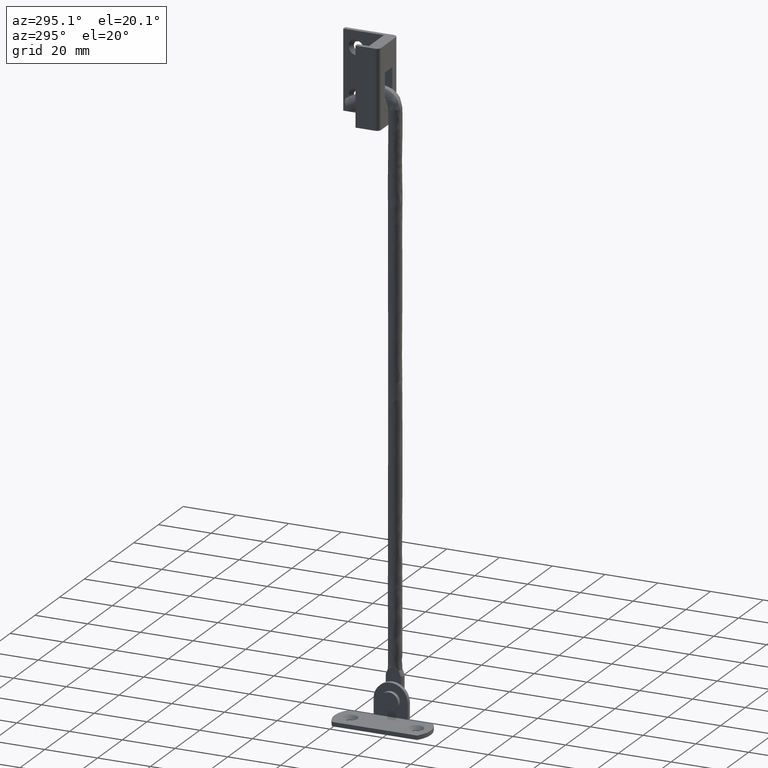
[diagram: clean part render]
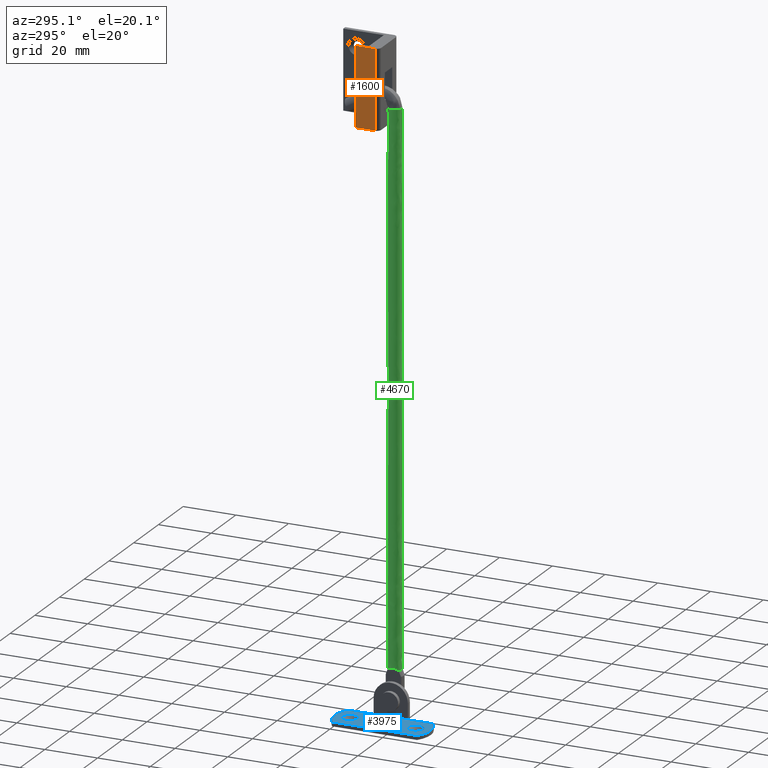
[diagram: same view with three faces highlighted in distinct colors, each labeled with its STEP entity id]
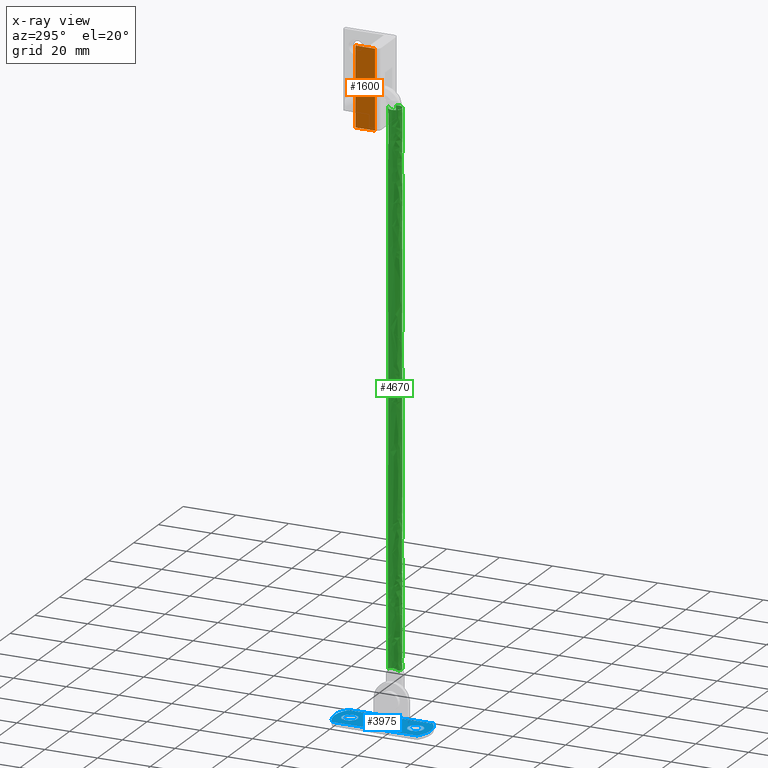
[diagram: x-ray of the same camera — body ghosted, the three highlighted faces saturated]
A machine part, auxiliary view with three faces highlighted in distinct colors.
The next image is the same camera in x-ray (body ghosted, the three faces saturated) — at least one of them is partly hidden behind the body in this view.
Their STEP definitions:

[orange] entity #1600 — the highlighted face is a freeform B-spline surface patch.
#1299=CARTESIAN_POINT('',(2.499999999999885,4.099999999999885,216.662185999999990));
#1300=VERTEX_POINT('',#1299);
#1323=CARTESIAN_POINT('',(2.499999999999885,4.099999999999885,246.662185999999990));
#1324=VERTEX_POINT('',#1323);
#1338=CARTESIAN_POINT('',(2.499999999999885,4.099999999999885,246.662185999999990));
#1339=CARTESIAN_POINT('',(2.499999999999885,4.099999999999885,216.662185999999990));
#1340=QUASI_UNIFORM_CURVE('',1,(#1338,#1339),.UNSPECIFIED.,.F.,.U.);
#1341=EDGE_CURVE('',#1324,#1300,#1340,.T.);
#1447=CARTESIAN_POINT('',(2.499999999999890,11.500000000000000,246.662185999999990));
#1448=VERTEX_POINT('',#1447);
#1454=CARTESIAN_POINT('',(2.499999999999885,4.099999999999885,246.662185999999990));
#1455=CARTESIAN_POINT('',(2.499999999999890,11.500000000000000,246.662185999999990));
#1456=QUASI_UNIFORM_CURVE('',1,(#1454,#1455),.UNSPECIFIED.,.F.,.U.);
#1457=EDGE_CURVE('',#1324,#1448,#1456,.T.);
#1480=CARTESIAN_POINT('',(2.499999999999890,11.500000000000000,216.662185999999990));
#1481=VERTEX_POINT('',#1480);
#1482=CARTESIAN_POINT('',(2.499999999999885,4.099999999999885,216.662185999999990));
#1483=CARTESIAN_POINT('',(2.499999999999890,11.500000000000000,216.662185999999990));
#1484=QUASI_UNIFORM_CURVE('',1,(#1482,#1483),.UNSPECIFIED.,.F.,.U.);
#1485=EDGE_CURVE('',#1300,#1481,#1484,.T.);
#1581=CARTESIAN_POINT('',(2.499999999999890,11.500000000000000,216.662185999999990));
#1582=CARTESIAN_POINT('',(2.499999999999890,11.500000000000000,246.662185999999990));
#1583=QUASI_UNIFORM_CURVE('',1,(#1581,#1582),.UNSPECIFIED.,.F.,.U.);
#1584=EDGE_CURVE('',#1481,#1448,#1583,.T.);
#1589=CARTESIAN_POINT('',(2.499999999999885,3.730369875410705,248.160685660235710));
#1590=CARTESIAN_POINT('',(2.499999999999885,11.869630190750341,248.160685660235710));
#1591=CARTESIAN_POINT('',(2.499999999999885,3.730369875410705,215.163685266880800));
#1592=CARTESIAN_POINT('',(2.499999999999885,11.869630190750341,215.163685266880800));
#1593=B_SPLINE_SURFACE_WITH_KNOTS('',1,1,((#1589,#1591),(#1590,#1592)),.UNSPECIFIED.,.F.,.F.,.U.,(2,2),(2,2),(0.0,8.139260315339632),(0.0,32.997000393354938),.UNSPECIFIED.);
#1594=ORIENTED_EDGE('',*,*,#1457,.T.);
#1595=ORIENTED_EDGE('',*,*,#1584,.F.);
#1596=ORIENTED_EDGE('',*,*,#1485,.F.);
#1597=ORIENTED_EDGE('',*,*,#1341,.F.);
#1598=EDGE_LOOP('',(#1594,#1595,#1596,#1597));
#1599=FACE_OUTER_BOUND('',#1598,.T.);
#1600=ADVANCED_FACE('',(#1599),#1593,.T.);

[blue] entity #3975 — the highlighted face is a freeform B-spline surface patch.
#2711=CARTESIAN_POINT('',(-0.342304578181758,15.480407913583580,1.599991625933538));
#2712=VERTEX_POINT('',#2711);
#2718=CARTESIAN_POINT('',(-3.0,12.500000000000000,1.599990999999905));
#2719=VERTEX_POINT('',#2718);
#2720=CARTESIAN_POINT('',(-0.342304578181758,15.480407913583573,1.599991625933538));
#2721=CARTESIAN_POINT('',(-3.000000000000000,15.175166747113407,1.599990999999906));
#2722=CARTESIAN_POINT('',(-3.0,12.500000000000000,1.599990999999905));
#2730=(BOUNDED_CURVE()B_SPLINE_CURVE(2,(#2720,#2721,#2722),.UNSPECIFIED.,.F.,.U.)B_SPLINE_CURVE_WITH_KNOTS((3,3),(0.269767898545846,0.500000000000000),.UNSPECIFIED.)CURVE()GEOMETRIC_REPRESENTATION_ITEM()RATIONAL_B_SPLINE_CURVE((0.957343455032106,0.730266314923630,1.0))REPRESENTATION_ITEM(''));
#2731=EDGE_CURVE('',#2712,#2719,#2730,.T.);
#2733=CARTESIAN_POINT('',(-0.183146203317312,9.505595505907845,1.599991134338101));
#2734=VERTEX_POINT('',#2733);
#2735=CARTESIAN_POINT('',(-3.0,12.500000000000000,1.599990999999905));
#2736=CARTESIAN_POINT('',(-3.000000000000001,9.677882887996207,1.599990999999905));
#2737=CARTESIAN_POINT('',(-0.183146203317313,9.505595505907845,1.599991134338101));
#2745=(BOUNDED_CURVE()B_SPLINE_CURVE(2,(#2735,#2736,#2737),.UNSPECIFIED.,.F.,.U.)B_SPLINE_CURVE_WITH_KNOTS((3,3),(0.500000000000000,0.739332895801230),.UNSPECIFIED.)CURVE()GEOMETRIC_REPRESENTATION_ITEM()RATIONAL_B_SPLINE_CURVE((1.0,0.719604071123333,0.976071899278093))REPRESENTATION_ITEM(''));
#2746=EDGE_CURVE('',#2719,#2734,#2745,.T.);
#2841=CARTESIAN_POINT('',(3.0,12.500000000000000,1.599990999999905));
#2842=VERTEX_POINT('',#2841);
#2843=CARTESIAN_POINT('',(-0.183146203317313,9.505595505907845,1.599991134338101));
#2844=CARTESIAN_POINT('',(-0.091658868023850,9.500000000000002,1.599990999999905));
#2845=CARTESIAN_POINT('',(0.0,9.500000000000002,1.599990999999905));
#2846=CARTESIAN_POINT('',(3.0,9.500000000000002,1.599990999999905));
#2847=CARTESIAN_POINT('',(3.0,12.500000000000000,1.599990999999905));
#2855=(BOUNDED_CURVE()B_SPLINE_CURVE(2,(#2843,#2844,#2845,#2846,#2847),.UNSPECIFIED.,.F.,.U.)B_SPLINE_CURVE_WITH_KNOTS((3,2,3),(0.739332895801231,0.750000000000000,1.0),.UNSPECIFIED.)CURVE()GEOMETRIC_REPRESENTATION_ITEM()RATIONAL_B_SPLINE_CURVE((0.976071899278095,0.987502710063216,1.0,0.707106781186548,1.0))REPRESENTATION_ITEM(''));
#2856=EDGE_CURVE('',#2734,#2842,#2855,.T.);
#2858=CARTESIAN_POINT('',(3.0,12.500000000000000,1.599990999999905));
#2859=CARTESIAN_POINT('',(3.0,15.500000000000004,1.599990999999905));
#2860=CARTESIAN_POINT('',(0.0,15.500000000000000,1.599990999999905));
#2861=CARTESIAN_POINT('',(-0.171712973747502,15.500000000000002,1.599990999999905));
#2862=CARTESIAN_POINT('',(-0.342304578181758,15.480407913583573,1.599991625933538));
#2870=(BOUNDED_CURVE()B_SPLINE_CURVE(2,(#2858,#2859,#2860,#2861,#2862),.UNSPECIFIED.,.F.,.U.)B_SPLINE_CURVE_WITH_KNOTS((3,2,3),(0.0,0.250000000000000,0.269767898545846),.UNSPECIFIED.)CURVE()GEOMETRIC_REPRESENTATION_ITEM()RATIONAL_B_SPLINE_CURVE((1.0,0.707106781186548,1.0,0.976840466262918,0.957343455032106))REPRESENTATION_ITEM(''));
#2871=EDGE_CURVE('',#2842,#2712,#2870,.T.);
#3039=CARTESIAN_POINT('',(-0.342304578181757,-9.519592086416427,1.599991625933537));
#3040=VERTEX_POINT('',#3039);
#3046=CARTESIAN_POINT('',(-3.0,-12.500000000000000,1.599990999999905));
#3047=VERTEX_POINT('',#3046);
#3048=CARTESIAN_POINT('',(-0.342304578181757,-9.519592086416427,1.599991625933537));
#3049=CARTESIAN_POINT('',(-3.000000000000000,-9.824833252886595,1.599990999999906));
#3050=CARTESIAN_POINT('',(-3.0,-12.500000000000000,1.599990999999905));
#3058=(BOUNDED_CURVE()B_SPLINE_CURVE(2,(#3048,#3049,#3050),.UNSPECIFIED.,.F.,.U.)B_SPLINE_CURVE_WITH_KNOTS((3,3),(0.269767898545846,0.500000000000000),.UNSPECIFIED.)CURVE()GEOMETRIC_REPRESENTATION_ITEM()RATIONAL_B_SPLINE_CURVE((0.957343455032106,0.730266314923630,1.0))REPRESENTATION_ITEM(''));
#3059=EDGE_CURVE('',#3040,#3047,#3058,.T.);
#3061=CARTESIAN_POINT('',(-0.183146203317312,-15.494404494092160,1.599991134338101));
#3062=VERTEX_POINT('',#3061);
#3063=CARTESIAN_POINT('',(-3.0,-12.500000000000000,1.599990999999905));
#3064=CARTESIAN_POINT('',(-3.000000000000001,-15.322117112003804,1.599990999999905));
#3065=CARTESIAN_POINT('',(-0.183146203317313,-15.494404494092155,1.599991134338101));
#3073=(BOUNDED_CURVE()B_SPLINE_CURVE(2,(#3063,#3064,#3065),.UNSPECIFIED.,.F.,.U.)B_SPLINE_CURVE_WITH_KNOTS((3,3),(0.500000000000000,0.739332895801230),.UNSPECIFIED.)CURVE()GEOMETRIC_REPRESENTATION_ITEM()RATIONAL_B_SPLINE_CURVE((1.0,0.719604071123333,0.976071899278093))REPRESENTATION_ITEM(''));
#3074=EDGE_CURVE('',#3047,#3062,#3073,.T.);
#3169=CARTESIAN_POINT('',(3.0,-12.500000000000000,1.599990999999905));
#3170=VERTEX_POINT('',#3169);
#3171=CARTESIAN_POINT('',(-0.183146203317313,-15.494404494092155,1.599991134338101));
#3172=CARTESIAN_POINT('',(-0.091658868023850,-15.500000000000004,1.599990999999905));
#3173=CARTESIAN_POINT('',(0.0,-15.500000000000000,1.599990999999905));
#3174=CARTESIAN_POINT('',(3.0,-15.500000000000004,1.599990999999905));
#3175=CARTESIAN_POINT('',(3.0,-12.500000000000000,1.599990999999905));
#3183=(BOUNDED_CURVE()B_SPLINE_CURVE(2,(#3171,#3172,#3173,#3174,#3175),.UNSPECIFIED.,.F.,.U.)B_SPLINE_CURVE_WITH_KNOTS((3,2,3),(0.739332895801231,0.750000000000000,1.0),.UNSPECIFIED.)CURVE()GEOMETRIC_REPRESENTATION_ITEM()RATIONAL_B_SPLINE_CURVE((0.976071899278095,0.987502710063216,1.0,0.707106781186548,1.0))REPRESENTATION_ITEM(''));
#3184=EDGE_CURVE('',#3062,#3170,#3183,.T.);
#3186=CARTESIAN_POINT('',(3.0,-12.500000000000000,1.599990999999905));
#3187=CARTESIAN_POINT('',(3.0,-9.500000000000002,1.599990999999905));
#3188=CARTESIAN_POINT('',(0.0,-9.500000000000002,1.599990999999905));
#3189=CARTESIAN_POINT('',(-0.171712973747502,-9.500000000000002,1.599990999999905));
#3190=CARTESIAN_POINT('',(-0.342304578181757,-9.519592086416427,1.599991625933537));
#3198=(BOUNDED_CURVE()B_SPLINE_CURVE(2,(#3186,#3187,#3188,#3189,#3190),.UNSPECIFIED.,.F.,.U.)B_SPLINE_CURVE_WITH_KNOTS((3,2,3),(0.0,0.250000000000000,0.269767898545846),.UNSPECIFIED.)CURVE()GEOMETRIC_REPRESENTATION_ITEM()RATIONAL_B_SPLINE_CURVE((1.0,0.707106781186548,1.0,0.976840466262918,0.957343455032106))REPRESENTATION_ITEM(''));
#3199=EDGE_CURVE('',#3170,#3040,#3198,.T.);
#3584=CARTESIAN_POINT('',(6.499999999999890,6.500000000000000,1.599990999999905));
#3585=VERTEX_POINT('',#3584);
#3633=CARTESIAN_POINT('',(6.499999999999890,-6.499999999999890,1.599990999999855));
#3634=VERTEX_POINT('',#3633);
#3733=CARTESIAN_POINT('',(6.499999999999890,-16.124119674649499,1.599990999999855));
#3734=VERTEX_POINT('',#3733);
#3740=CARTESIAN_POINT('',(-6.500000058880930,-16.124119631521101,1.599990999999855));
#3741=VERTEX_POINT('',#3740);
#3742=CARTESIAN_POINT('',(-6.500000058880920,-16.124119631521090,1.599990999999855));
#3743=CARTESIAN_POINT('',(-0.000000045235587,-20.885155342753514,1.599990999999855));
#3744=CARTESIAN_POINT('',(6.499999999999889,-16.124119674649510,1.599990999999855));
#3752=(BOUNDED_CURVE()B_SPLINE_CURVE(2,(#3742,#3743,#3744),.UNSPECIFIED.,.F.,.U.)CURVE()GEOMETRIC_REPRESENTATION_ITEM()QUASI_UNIFORM_CURVE()RATIONAL_B_SPLINE_CURVE((1.0,0.806738150280482,1.0))REPRESENTATION_ITEM(''));
#3753=EDGE_CURVE('',#3741,#3734,#3752,.T.);
#3775=CARTESIAN_POINT('',(6.500000058880950,16.124119631521101,1.599990999999855));
#3776=VERTEX_POINT('',#3775);
#3782=CARTESIAN_POINT('',(6.500000058880950,16.124119631521101,1.599990999999855));
#3783=CARTESIAN_POINT('',(6.499999999999890,6.500000000000000,1.599990999999905));
#3784=QUASI_UNIFORM_CURVE('',1,(#3782,#3783),.UNSPECIFIED.,.F.,.U.);
#3785=EDGE_CURVE('',#3776,#3585,#3784,.T.);
#3820=CARTESIAN_POINT('',(-6.500000058880910,16.124119631521101,1.599990999999855));
#3821=VERTEX_POINT('',#3820);
#3827=CARTESIAN_POINT('',(6.500000058880937,16.124119631521079,1.599990999999855));
#3828=CARTESIAN_POINT('',(2.081668E-014,20.885155375887098,1.599990999999856));
#3829=CARTESIAN_POINT('',(-6.500000058880909,16.124119631521101,1.599990999999855));
#3837=(BOUNDED_CURVE()B_SPLINE_CURVE(2,(#3827,#3828,#3829),.UNSPECIFIED.,.F.,.U.)CURVE()GEOMETRIC_REPRESENTATION_ITEM()QUASI_UNIFORM_CURVE()RATIONAL_B_SPLINE_CURVE((1.0,0.806738148320099,1.0))REPRESENTATION_ITEM(''));
#3838=EDGE_CURVE('',#3776,#3821,#3837,.T.);
#3855=CARTESIAN_POINT('',(-6.500000058880930,-16.124119631521101,1.599990999999855));
#3856=CARTESIAN_POINT('',(-6.500000058880910,16.124119631521101,1.599990999999855));
#3857=QUASI_UNIFORM_CURVE('',1,(#3855,#3856),.UNSPECIFIED.,.F.,.U.);
#3858=EDGE_CURVE('',#3741,#3821,#3857,.T.);
#3869=CARTESIAN_POINT('',(6.499999999999890,-6.499999999999890,1.599990999999855));
#3870=CARTESIAN_POINT('',(6.499999999999890,-16.124119674649499,1.599990999999855));
#3871=QUASI_UNIFORM_CURVE('',1,(#3869,#3870),.UNSPECIFIED.,.F.,.U.);
#3872=EDGE_CURVE('',#3634,#3734,#3871,.T.);
#3907=CARTESIAN_POINT('',(6.499999999999890,6.500000000000000,1.599990999999905));
#3908=CARTESIAN_POINT('',(6.499999999999890,-6.499999999999890,1.599990999999855));
#3909=QUASI_UNIFORM_CURVE('',1,(#3907,#3908),.UNSPECIFIED.,.F.,.U.);
#3910=EDGE_CURVE('',#3585,#3634,#3909,.T.);
#3950=CARTESIAN_POINT('',(7.149350039566633,20.073174929255352,1.599990999999905));
#3951=CARTESIAN_POINT('',(-7.149350388253788,20.073174929255352,1.599990999999905));
#3952=CARTESIAN_POINT('',(7.149350039566634,-20.073175908261650,1.599990999999905));
#3953=CARTESIAN_POINT('',(-7.149350388253788,-20.073175908261650,1.599990999999905));
#3954=B_SPLINE_SURFACE_WITH_KNOTS('',1,1,((#3950,#3952),(#3951,#3953)),.UNSPECIFIED.,.F.,.F.,.U.,(2,2),(2,2),(0.0,14.298700427820419),(0.0,40.146350837517012),.UNSPECIFIED.);
#3955=ORIENTED_EDGE('',*,*,#3858,.F.);
#3956=ORIENTED_EDGE('',*,*,#3753,.T.);
#3957=ORIENTED_EDGE('',*,*,#3872,.F.);
#3958=ORIENTED_EDGE('',*,*,#3910,.F.);
#3959=ORIENTED_EDGE('',*,*,#3785,.F.);
#3960=ORIENTED_EDGE('',*,*,#3838,.T.);
#3961=EDGE_LOOP('',(#3955,#3956,#3957,#3958,#3959,#3960));
#3962=FACE_OUTER_BOUND('',#3961,.T.);
#3963=ORIENTED_EDGE('',*,*,#3074,.F.);
#3964=ORIENTED_EDGE('',*,*,#3059,.F.);
#3965=ORIENTED_EDGE('',*,*,#3199,.F.);
#3966=ORIENTED_EDGE('',*,*,#3184,.F.);
#3967=EDGE_LOOP('',(#3963,#3964,#3965,#3966));
#3968=FACE_BOUND('',#3967,.T.);
#3969=ORIENTED_EDGE('',*,*,#2746,.F.);
#3970=ORIENTED_EDGE('',*,*,#2731,.F.);
#3971=ORIENTED_EDGE('',*,*,#2871,.F.);
#3972=ORIENTED_EDGE('',*,*,#2856,.F.);
#3973=EDGE_LOOP('',(#3969,#3970,#3971,#3972));
#3974=FACE_BOUND('',#3973,.T.);
#3975=ADVANCED_FACE('',(#3962,#3968,#3974),#3954,.T.);

[green] entity #4670 — the highlighted face is a freeform B-spline surface patch.
#4429=CARTESIAN_POINT('',(10.040179391890209,2.499284411893782,223.233963019317090));
#4430=VERTEX_POINT('',#4429);
#4431=CARTESIAN_POINT('',(12.471391746893170,0.791491312418254,223.233963019317000));
#4432=VERTEX_POINT('',#4431);
#4448=CARTESIAN_POINT('',(12.471378615132220,0.791486928897166,18.971365482898062));
#4449=VERTEX_POINT('',#4448);
#4450=CARTESIAN_POINT('',(12.471378615132220,0.791486928897166,18.971365482898062));
#4451=CARTESIAN_POINT('',(12.471391746893170,0.791491312418254,223.233963019317000));
#4452=QUASI_UNIFORM_CURVE('',1,(#4450,#4451),.UNSPECIFIED.,.F.,.U.);
#4453=EDGE_CURVE('',#4449,#4432,#4452,.T.);
#4470=CARTESIAN_POINT('',(10.040179715357761,2.499250620640429,18.099990999999850));
#4471=VERTEX_POINT('',#4470);
#4487=CARTESIAN_POINT('',(10.040179715357761,2.499250620640429,18.099990999999850));
#4488=CARTESIAN_POINT('',(10.040179391890209,2.499284411893782,223.233963019317090));
#4489=QUASI_UNIFORM_CURVE('',1,(#4487,#4488),.UNSPECIFIED.,.F.,.U.);
#4490=EDGE_CURVE('',#4471,#4430,#4489,.T.);
#4495=CARTESIAN_POINT('',(10.040179393868639,2.499284411941147,12.971641699505231));
#4496=CARTESIAN_POINT('',(7.540894981927490,2.439472805809984,12.971641699505227));
#4497=CARTESIAN_POINT('',(7.600706588058653,-0.059811606131163,12.971641699505231));
#4498=CARTESIAN_POINT('',(7.660518194189816,-2.559096018072312,12.971641699505227));
#4499=CARTESIAN_POINT('',(10.159802606130960,-2.499284411941148,12.971641699505231));
#4500=CARTESIAN_POINT('',(12.659087018072110,-2.439472805809984,12.971641699505227));
#4501=CARTESIAN_POINT('',(12.599275411940949,0.059811606131163,12.971641699505231));
#4502=CARTESIAN_POINT('',(12.590290446386723,0.435256871758201,12.971641699505225));
#4503=CARTESIAN_POINT('',(12.471391747047381,0.791491311956200,12.971641699505231));
#4504=CARTESIAN_POINT('',(10.040179393868639,2.499284411941134,228.490521052789210));
#4505=CARTESIAN_POINT('',(7.540894981927490,2.439472805809972,228.490521052789260));
#4506=CARTESIAN_POINT('',(7.600706588058653,-0.059811606131176,228.490521052789210));
#4507=CARTESIAN_POINT('',(7.660518194189816,-2.559096018072324,228.490521052789260));
#4508=CARTESIAN_POINT('',(10.159802606130960,-2.499284411941161,228.490521052789210));
#4509=CARTESIAN_POINT('',(12.659087018072110,-2.439472805809999,228.490521052789260));
#4510=CARTESIAN_POINT('',(12.599275411940949,0.059811606131149,228.490521052789210));
#4511=CARTESIAN_POINT('',(12.590290446386723,0.435256871758188,228.490521052789230));
#4512=CARTESIAN_POINT('',(12.471391747047381,0.791491311956186,228.490521052789260));
#4520=(BOUNDED_SURFACE()B_SPLINE_SURFACE(2,1,((#4495,#4504),(#4496,#4505),(#4497,#4506),(#4498,#4507),(#4499,#4508),(#4500,#4509),(#4501,#4510),(#4502,#4511),(#4503,#4512)),.UNSPECIFIED.,.F.,.F.,.U.)B_SPLINE_SURFACE_WITH_KNOTS((3,2,2,2,3),(2,2),(0.0,4.142135623730950,8.284271247461900,12.426406871192849,13.254833995939039),(0.0,215.518879353284010),.UNSPECIFIED.)GEOMETRIC_REPRESENTATION_ITEM()RATIONAL_B_SPLINE_SURFACE(((1.0,1.0),(0.707106781186548,0.707106781186548),(1.0,1.0),(0.707106781186548,0.707106781186548),(1.0,1.0),(0.707106781186548,0.707106781186548),(1.0,1.0),(0.941421356237310,0.941421356237310),(0.906274169979695,0.906274169979695)))REPRESENTATION_ITEM('')SURFACE());
#4521=CARTESIAN_POINT('',(12.599990999999800,-1.145215E-014,223.233963019317000));
#4522=VERTEX_POINT('',#4521);
#4523=CARTESIAN_POINT('',(12.471391746893165,0.791491312418254,223.233963019317000));
#4524=CARTESIAN_POINT('',(12.599990999999799,0.406192876561288,223.233963019317060));
#4525=CARTESIAN_POINT('',(12.599990999999800,-1.145215E-014,223.233963019317000));
#4533=(BOUNDED_CURVE()B_SPLINE_CURVE(2,(#4523,#4524,#4525),.UNSPECIFIED.,.F.,.U.)B_SPLINE_CURVE_WITH_KNOTS((3,3),(0.946177893175175,1.0),.UNSPECIFIED.)CURVE()GEOMETRIC_REPRESENTATION_ITEM()RATIONAL_B_SPLINE_CURVE((0.901037637345175,0.936943479555022,1.0))REPRESENTATION_ITEM(''));
#4534=EDGE_CURVE('',#4432,#4522,#4533,.T.);
#4535=ORIENTED_EDGE('',*,*,#4534,.T.);
#4536=CARTESIAN_POINT('',(8.966518254292337,-2.228281744918818,223.233963019782290));
#4537=VERTEX_POINT('',#4536);
#4538=CARTESIAN_POINT('',(12.599990999999800,-1.145215E-014,223.233963019317000));
#4539=CARTESIAN_POINT('',(12.599990999999802,-2.500000000000012,223.233963019316920));
#4540=CARTESIAN_POINT('',(10.099990999999800,-2.500000000000012,223.233963019317000));
#4541=CARTESIAN_POINT('',(9.500686216931111,-2.500000000000012,223.233963019316970));
#4542=CARTESIAN_POINT('',(8.966518254292337,-2.228281744918819,223.233963019782350));
#4550=(BOUNDED_CURVE()B_SPLINE_CURVE(2,(#4538,#4539,#4540,#4541,#4542),.UNSPECIFIED.,.F.,.U.)B_SPLINE_CURVE_WITH_KNOTS((3,2,3),(0.0,0.250000000000000,0.327098879650989),.UNSPECIFIED.)CURVE()GEOMETRIC_REPRESENTATION_ITEM()RATIONAL_B_SPLINE_CURVE((1.0,0.707106781186548,1.0,0.909673043888444,0.875058944724767))REPRESENTATION_ITEM(''));
#4551=EDGE_CURVE('',#4522,#4537,#4550,.T.);
#4552=ORIENTED_EDGE('',*,*,#4551,.T.);
#4553=CARTESIAN_POINT('',(7.599990999999799,-1.145215E-014,223.233963019317000));
#4554=VERTEX_POINT('',#4553);
#4555=CARTESIAN_POINT('',(8.966518254292337,-2.228281744918819,223.233963019782350));
#4556=CARTESIAN_POINT('',(7.599990999999799,-1.533162555772754,223.233963019317060));
#4557=CARTESIAN_POINT('',(7.599990999999799,-1.145215E-014,223.233963019317000));
#4565=(BOUNDED_CURVE()B_SPLINE_CURVE(2,(#4555,#4556,#4557),.UNSPECIFIED.,.F.,.U.)B_SPLINE_CURVE_WITH_KNOTS((3,3),(0.327098879650989,0.500000000000000),.UNSPECIFIED.)CURVE()GEOMETRIC_REPRESENTATION_ITEM()RATIONAL_B_SPLINE_CURVE((0.875058944724767,0.797433737298104,1.0))REPRESENTATION_ITEM(''));
#4566=EDGE_CURVE('',#4537,#4554,#4565,.T.);
#4567=ORIENTED_EDGE('',*,*,#4566,.T.);
#4568=CARTESIAN_POINT('',(7.940182457033420,1.259058004116333,223.233963019473890));
#4569=VERTEX_POINT('',#4568);
#4570=CARTESIAN_POINT('',(7.599990999999799,-1.145215E-014,223.233963019317000));
#4571=CARTESIAN_POINT('',(7.599990999999798,0.675488055216325,223.233963019317030));
#4572=CARTESIAN_POINT('',(7.940182457033421,1.259058004116333,223.233963019473890));
#4580=(BOUNDED_CURVE()B_SPLINE_CURVE(2,(#4570,#4571,#4572),.UNSPECIFIED.,.F.,.U.)B_SPLINE_CURVE_WITH_KNOTS((3,3),(0.500000000000000,0.585913162432334),.UNSPECIFIED.)CURVE()GEOMETRIC_REPRESENTATION_ITEM()RATIONAL_B_SPLINE_CURVE((1.0,0.899346469267003,0.867872643616021))REPRESENTATION_ITEM(''));
#4581=EDGE_CURVE('',#4554,#4569,#4580,.T.);
#4582=ORIENTED_EDGE('',*,*,#4581,.T.);
#4583=CARTESIAN_POINT('',(7.940182457033421,1.259058004116332,223.233963019473890));
#4584=CARTESIAN_POINT('',(8.643688858101513,2.465864306961160,223.233963019321440));
#4585=CARTESIAN_POINT('',(10.040179391890209,2.499284411893782,223.233963019317090));
#4593=(BOUNDED_CURVE()B_SPLINE_CURVE(2,(#4583,#4584,#4585),.UNSPECIFIED.,.F.,.U.)B_SPLINE_CURVE_WITH_KNOTS((3,3),(0.585913162432334,0.745790933837440),.UNSPECIFIED.)CURVE()GEOMETRIC_REPRESENTATION_ITEM()RATIONAL_B_SPLINE_CURVE((0.867872643616021,0.809302280702945,0.990303591418364))REPRESENTATION_ITEM(''));
#4594=EDGE_CURVE('',#4569,#4430,#4593,.T.);
#4595=ORIENTED_EDGE('',*,*,#4594,.T.);
#4596=ORIENTED_EDGE('',*,*,#4490,.F.);
#4597=CARTESIAN_POINT('',(8.599990998929561,1.999926248707810,18.099990999999800));
#4598=VERTEX_POINT('',#4597);
#4599=CARTESIAN_POINT('',(8.599990998929561,1.999926248707810,18.099990999999800));
#4600=CARTESIAN_POINT('',(8.636301619790629,2.027163677277984,18.099990999999800));
#4601=CARTESIAN_POINT('',(8.673353511653021,2.053412814463910,18.099990999999800));
#4602=CARTESIAN_POINT('',(8.847140612619198,2.169535167063595,18.099990999999800));
#4603=CARTESIAN_POINT('',(8.992136134446890,2.247038510954342,18.099990999999811));
#4604=CARTESIAN_POINT('',(9.294468447623238,2.372272699698546,18.099990999999829));
#4605=CARTESIAN_POINT('',(9.451797763209674,2.420000447889894,18.099990999999829));
#4606=CARTESIAN_POINT('',(9.753196399093879,2.479957578198511,18.099990999999839));
#4607=CARTESIAN_POINT('',(9.896539159400113,2.495802809055274,18.099990999999850));
#4608=CARTESIAN_POINT('',(10.040179715357761,2.499250620640429,18.099990999999850));
#4609=B_SPLINE_CURVE_WITH_KNOTS('',3,(#4599,#4600,#4601,#4602,#4603,#4604,#4605,#4606,#4607,#4608),.UNSPECIFIED.,.F.,.U.,(4,2,2,2,4),(0.147580786902571,0.156250000066466,0.187500000066466,0.218750000066466,0.246191893878255),.UNSPECIFIED.);
#4610=EDGE_CURVE('',#4598,#4471,#4609,.T.);
#4611=ORIENTED_EDGE('',*,*,#4610,.F.);
#4612=CARTESIAN_POINT('',(8.599990999999790,-1.999926249020900,18.099990999999900));
#4613=VERTEX_POINT('',#4612);
#4614=CARTESIAN_POINT('',(8.599990999999790,-1.999926249020900,18.099990999999900));
#4615=CARTESIAN_POINT('',(7.600012586636948,-1.249947160222422,19.099969413162142));
#4616=CARTESIAN_POINT('',(7.600012586302505,-2.838603E-010,19.099969413162100));
#4617=CARTESIAN_POINT('',(7.600012585968061,1.249947159654703,19.099969413162075));
#4618=CARTESIAN_POINT('',(8.599990998929561,1.999926248707810,18.099990999999800));
#4626=(BOUNDED_CURVE()B_SPLINE_CURVE(2,(#4614,#4615,#4616,#4617,#4618),.UNSPECIFIED.,.F.,.U.)B_SPLINE_CURVE_WITH_KNOTS((3,2,3),(0.0,0.500000000000000,1.0),.UNSPECIFIED.)CURVE()GEOMETRIC_REPRESENTATION_ITEM()RATIONAL_B_SPLINE_CURVE((1.0,0.894429604478501,1.0,0.894429604478501,1.0))REPRESENTATION_ITEM(''));
#4627=EDGE_CURVE('',#4613,#4598,#4626,.T.);
#4628=ORIENTED_EDGE('',*,*,#4627,.F.);
#4629=CARTESIAN_POINT('',(11.599991001070160,-1.999926248707665,18.099990999999800));
#4630=VERTEX_POINT('',#4629);
#4631=CARTESIAN_POINT('',(11.599991001070160,-1.999926248707665,18.099990999999800));
#4632=CARTESIAN_POINT('',(11.563680357234290,-2.027162719282359,18.099990999999800));
#4633=CARTESIAN_POINT('',(11.526628442196920,-2.053410890125855,18.099990999999800));
#4634=CARTESIAN_POINT('',(11.352841233749510,-2.169528761003757,18.099990999999800));
#4635=CARTESIAN_POINT('',(11.207845625621101,-2.247028506351058,18.099990999999811));
#4636=CARTESIAN_POINT('',(10.905513138829191,-2.372255455721046,18.099990999999822));
#4637=CARTESIAN_POINT('',(10.748183735932191,-2.419979563260633,18.099990999999829));
#4638=CARTESIAN_POINT('',(10.427229279860200,-2.483819708416729,18.099990999999829));
#4639=CARTESIAN_POINT('',(10.263612162916600,-2.499934167459844,18.099990999999839));
#4640=CARTESIAN_POINT('',(9.936369837318029,-2.499934167425666,18.099990999999861));
#4641=CARTESIAN_POINT('',(9.772752720374426,-2.483819708348373,18.099990999999861));
#4642=CARTESIAN_POINT('',(9.451798264302434,-2.419979563125234,18.099990999999871));
#4643=CARTESIAN_POINT('',(9.294468861405438,-2.372255455552782,18.099990999999878));
#4644=CARTESIAN_POINT('',(8.992136374613525,-2.247028506119641,18.099990999999889));
#4645=CARTESIAN_POINT('',(8.847140766485126,-2.169528760742052,18.099990999999889));
#4646=CARTESIAN_POINT('',(8.673353558327122,-2.053410890021219,18.099990999999900));
#4647=CARTESIAN_POINT('',(8.636301643568588,-2.027162719379167,18.099990999999900));
#4648=CARTESIAN_POINT('',(8.599990999999790,-1.999926249020900,18.099990999999900));
#4649=B_SPLINE_CURVE_WITH_KNOTS('',3,(#4631,#4632,#4633,#4634,#4635,#4636,#4637,#4638,#4639,#4640,#4641,#4642,#4643,#4644,#4645,#4646,#4647,#4648),.UNSPECIFIED.,.F.,.U.,(4,2,2,2,2,2,2,2,4),(0.647580786902574,0.656250000066478,0.687500000066478,0.718750000066478,0.750000000066478,0.781250000066478,0.812500000066478,0.843750000066478,0.852419213163904),.UNSPECIFIED.);
#4650=EDGE_CURVE('',#4630,#4613,#4649,.T.);
#4651=ORIENTED_EDGE('',*,*,#4650,.F.);
#4652=CARTESIAN_POINT('',(12.471378615132222,0.791486928897166,18.971365482898065));
#4653=CARTESIAN_POINT('',(12.599981344644124,0.406192749744010,19.099969413133046));
#4654=CARTESIAN_POINT('',(12.599979745552440,0.000003448857608,19.099969413136929));
#4655=CARTESIAN_POINT('',(12.599974824736607,-1.249945353665771,19.099969413148866));
#4656=CARTESIAN_POINT('',(11.599991001070160,-1.999926248707665,18.099990999999800));
#4664=(BOUNDED_CURVE()B_SPLINE_CURVE(2,(#4652,#4653,#4654,#4655,#4656),.UNSPECIFIED.,.F.,.U.)B_SPLINE_CURVE_WITH_KNOTS((3,2,3),(0.325050036269895,0.500000000000000,1.0),.UNSPECIFIED.)CURVE()GEOMETRIC_REPRESENTATION_ITEM()RATIONAL_B_SPLINE_CURVE((0.951971810970756,0.963060926265083,1.0,0.894429604478505,1.0))REPRESENTATION_ITEM(''));
#4665=EDGE_CURVE('',#4449,#4630,#4664,.T.);
#4666=ORIENTED_EDGE('',*,*,#4665,.F.);
#4667=ORIENTED_EDGE('',*,*,#4453,.T.);
#4668=EDGE_LOOP('',(#4535,#4552,#4567,#4582,#4595,#4596,#4611,#4628,#4651,#4666,#4667));
#4669=FACE_OUTER_BOUND('',#4668,.T.);
#4670=ADVANCED_FACE('',(#4669),#4520,.T.);